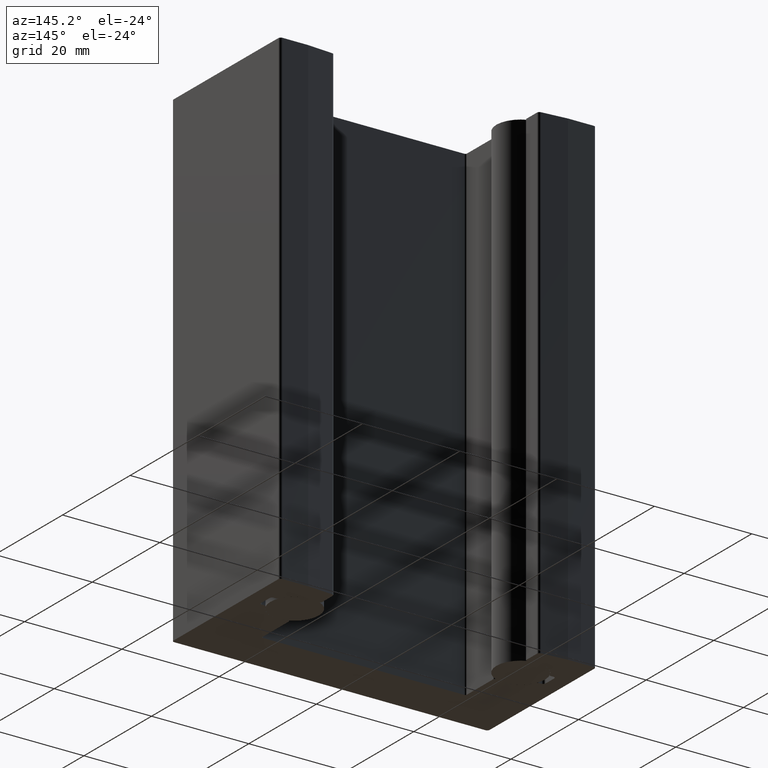
[diagram: clean part render]
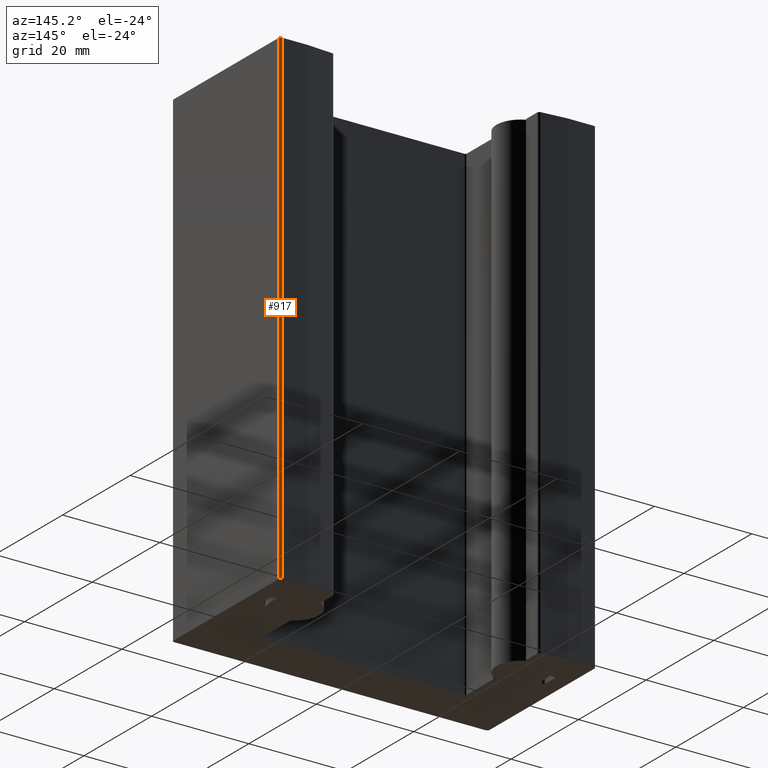
[diagram: same view with one face highlighted and labeled with its STEP entity id]
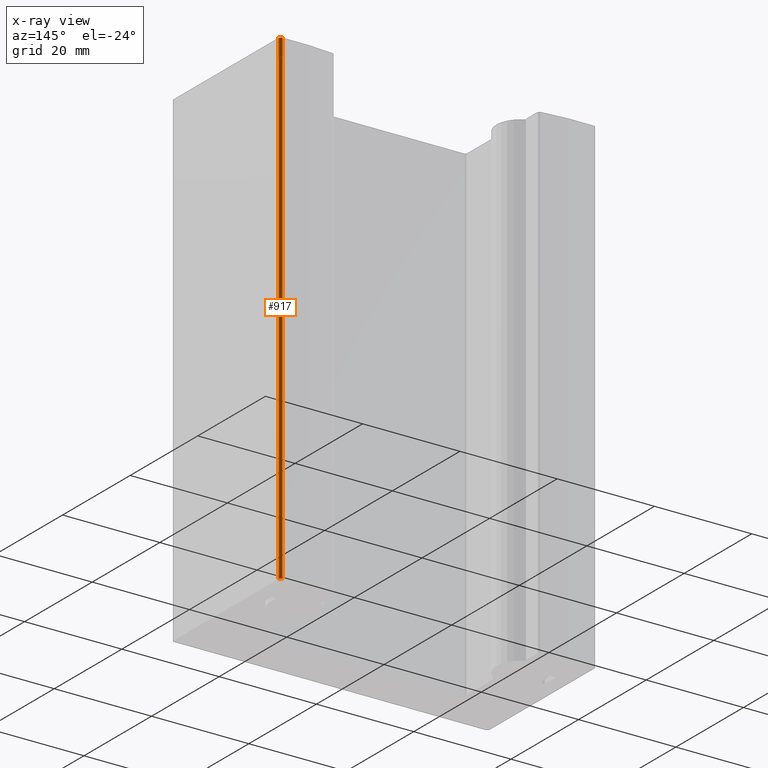
[diagram: x-ray of the same camera — body ghosted, the highlighted face saturated]
A machine part, auxiliary view. The second image highlights one B-rep face of the part: STEP entity #917.
The next image is the same camera in x-ray: the body ghosted, the highlighted face saturated — about 0% of this face is hidden behind the body in this view.
In plain terms, the highlighted cylindrical surface (edge-blend (fillet) strip) has radius 0.5 mm, axis along (0, 0, -1).
Its self-contained STEP definition (entity closure, byte-faithful):
#81=FACE_OUTER_BOUND('',#130,.T.);
#130=EDGE_LOOP('',(#744,#745,#746,#747));
#201=LINE('',#1581,#282);
#210=LINE('',#1617,#291);
#282=VECTOR('',#1283,10.);
#291=VECTOR('',#1316,10.);
#354=CIRCLE('',#1073,0.5);
#355=CIRCLE('',#1075,0.5);
#425=VERTEX_POINT('',#1578);
#426=VERTEX_POINT('',#1580);
#440=VERTEX_POINT('',#1612);
#441=VERTEX_POINT('',#1616);
#539=EDGE_CURVE('',#426,#425,#201,.T.);
#557=EDGE_CURVE('',#425,#440,#354,.T.);
#558=EDGE_CURVE('',#440,#441,#210,.T.);
#559=EDGE_CURVE('',#441,#426,#355,.T.);
#744=ORIENTED_EDGE('',*,*,#557,.T.);
#745=ORIENTED_EDGE('',*,*,#558,.T.);
#746=ORIENTED_EDGE('',*,*,#559,.T.);
#747=ORIENTED_EDGE('',*,*,#539,.T.);
#878=CYLINDRICAL_SURFACE('',#1074,0.5);
#917=ADVANCED_FACE('',(#81),#878,.T.);
#1073=AXIS2_PLACEMENT_3D('',#1614,#1312,#1313);
#1074=AXIS2_PLACEMENT_3D('',#1615,#1314,#1315);
#1075=AXIS2_PLACEMENT_3D('',#1618,#1317,#1318);
#1283=DIRECTION('',(0.,0.,-1.));
#1312=DIRECTION('center_axis',(0.,0.,1.));
#1313=DIRECTION('ref_axis',(0.707106781186548,0.707106781186548,0.));
#1314=DIRECTION('center_axis',(0.,0.,-1.));
#1315=DIRECTION('ref_axis',(0.707106781186548,0.707106781186548,0.));
#1316=DIRECTION('',(0.,0.,1.));
#1317=DIRECTION('center_axis',(0.,0.,-1.));
#1318=DIRECTION('ref_axis',(0.707106781186548,0.707106781186548,0.));
#1578=CARTESIAN_POINT('',(32.5,15.5,-3000.));
#1580=CARTESIAN_POINT('',(32.5,15.5,-2900.));
#1581=CARTESIAN_POINT('',(32.5,15.5,0.));
#1612=CARTESIAN_POINT('',(32.,16.,-3000.));
#1614=CARTESIAN_POINT('Origin',(32.,15.5,-3000.));
#1615=CARTESIAN_POINT('Origin',(32.,15.5,0.));
#1616=CARTESIAN_POINT('',(32.,16.,-2900.));
#1617=CARTESIAN_POINT('',(32.,16.,0.));
#1618=CARTESIAN_POINT('Origin',(32.,15.5,-2900.));